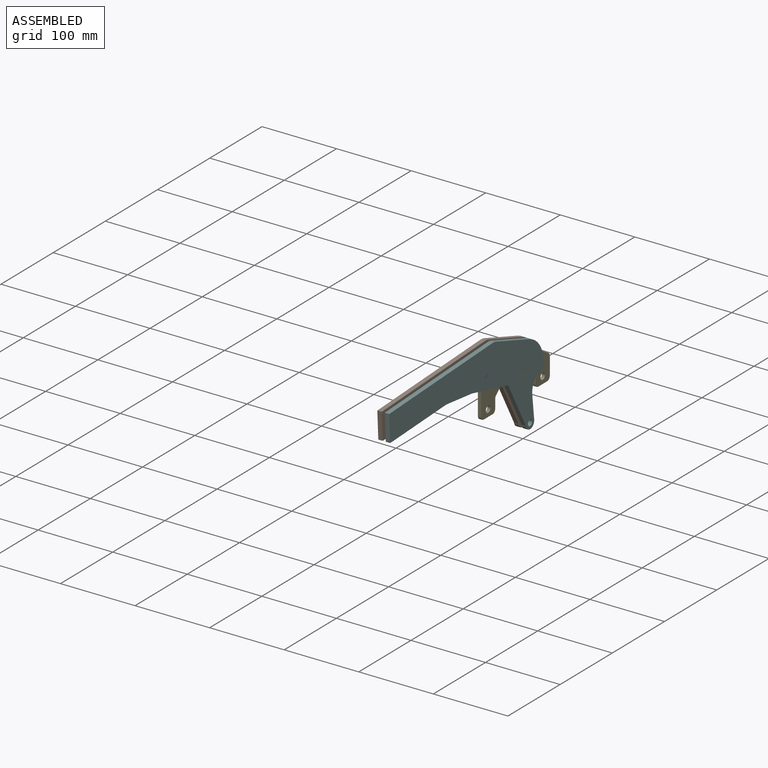
[diagram: assembled view]
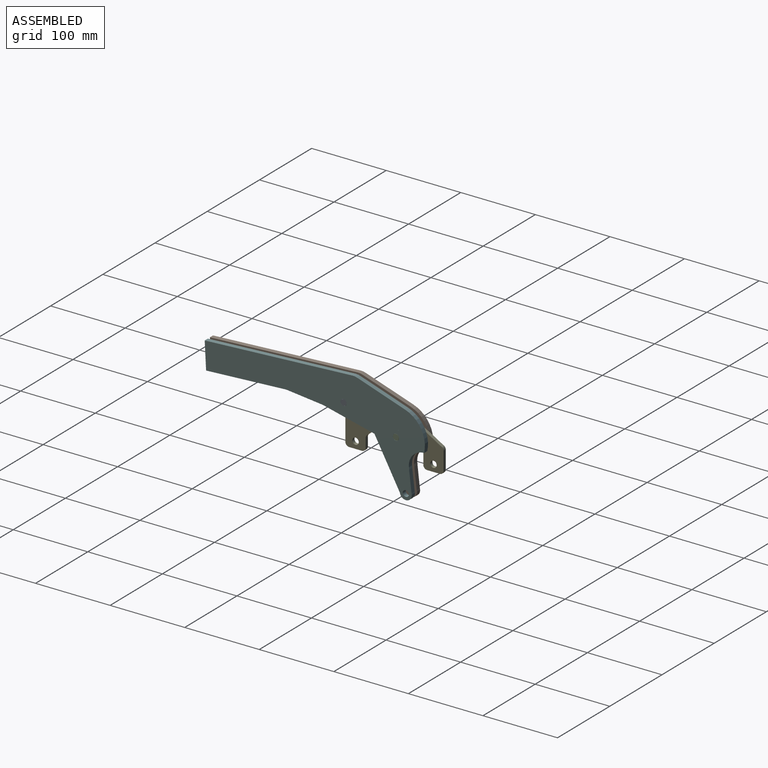
[diagram: assembled view, second angle]
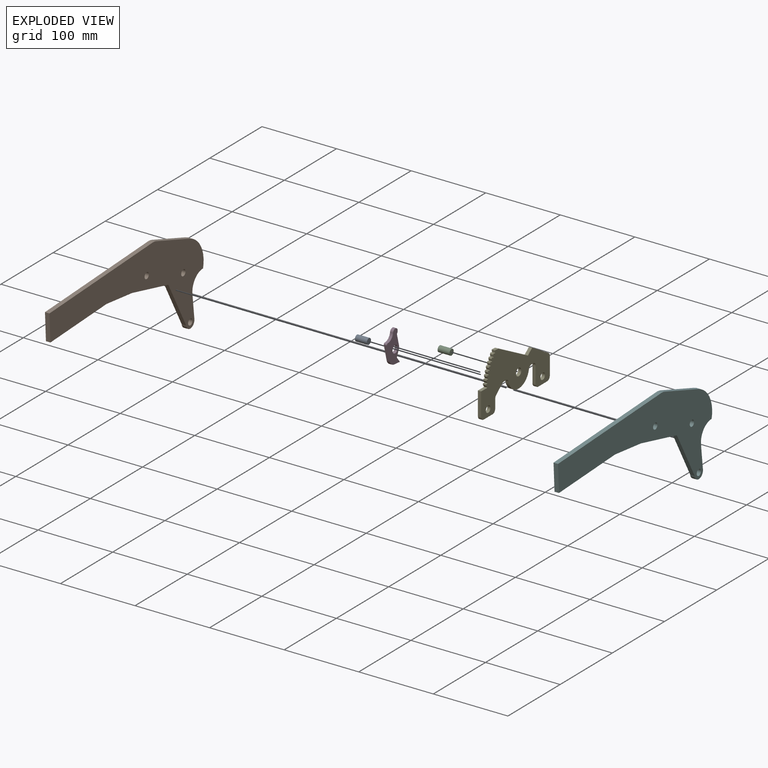
[diagram: exploded view]
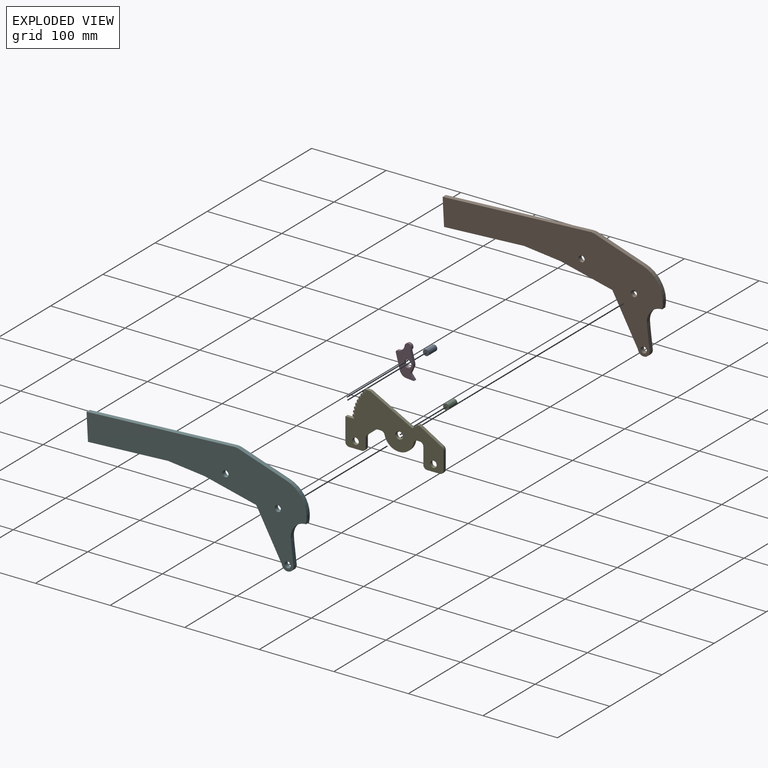
[diagram: exploded view, second angle]
ASSEMBLY  parts=6 mates=6
PART A: 3 faces, bbox 8x16x8 mm
  f0: cylinder r=4mm len=16mm, axis (0,1,0), area 402.1mm2, adj f1,f2
  f1: plane 8x8mm, normal (0,-1,0), area 50.3mm2, adj f0
  f2: plane 8x8mm, normal (0,1,0), area 50.3mm2, adj f0
PART B: 21 faces, bbox 6x299.7x107.2 mm
  f0: plane 6x0.13mm, normal (0,-1,0), area 0.8mm2, adj f1,f18,f19,f20
  f1: plane 6x0.72mm, normal (0,0,1), area 4.3mm2, adj f0,f18,f19,f20
  f2: cylinder r=8mm len=15.16mm, axis (-1,0,0), area 157.4mm2, adj f3,f17,f19,f20
  f3: plane 25.43x11.93mm, normal (0,0.91,0.42), area 168.6mm2, adj f2,f4,f19,f20
  f4: cylinder r=38.81mm len=6mm, axis (-1,0,0), area 1.8mm2, adj f3,f5,f19,f20
  f5: cylinder r=20.57mm len=30.47mm, axis (-1,0,0), area 223.1mm2, adj f4,f6,f19,f20
  f6: cylinder r=38.81mm len=38.65mm, axis (-1,0,0), area 344.9mm2, adj f5,f7,f19,f20
  f7: plane 67.64x6mm, normal (0,0,1), area 405.8mm2, adj f6,f8,f19,f20
  f8: cylinder r=20mm len=8.58mm, axis (-1,0,0), area 53.2mm2, adj f7,f9,f19,f20
  f9: plane 182.52x71.76mm, normal (0,-0.37,0.93), area 1176.7mm2, adj f8,f10,f19,f20
  f10: plane 33.5x13.17mm, normal (0,-0.93,-0.37), area 216mm2, adj f9,f11,f19,f20
  f11: plane 100.14x39.37mm, normal (0,0.37,-0.93), area 645.6mm2, adj f10,f12,f19,f20
  f12: plane 48.39x10.41mm, normal (0,0.21,-0.98), area 297mm2, adj f11,f13,f19,f20
  f13: plane 70.72x6.27mm, normal (0,0.09,-1), area 426mm2, adj f12,f17,f19,f20
  f14: cylinder r=4.1mm len=8.2mm, axis (-1,0,0), area 154.6mm2, adj f19,f20
  f15: cylinder r=4.1mm len=8.2mm, axis (-1,0,0), area 154.6mm2, adj f19,f20
  f16: cylinder r=4.1mm len=8.2mm, axis (-1,0,0), area 154.6mm2, adj f19,f20
  f17: plane 52.15x48.39mm, normal (0,-0.68,-0.73), area 426.9mm2, adj f2,f13,f19,f20
  f18: cylinder r=13.5mm len=6mm, axis (-1,0,0), area 4.4mm2, adj f0,f1,f19,f20
  f19: plane 299.74x107.2mm, normal (1,0,0), area 14235.3mm2, adj f0,f1,f2,f3,f4,f5,f6,f7
  f20: plane 299.74x107.2mm, normal (-1,0,0), area 14235.3mm2, adj f0,f1,f2,f3,f4,f5,f6,f7
PART C: same geometry as A
PART D: 14 faces, bbox 4x44.4x23 mm
  f0: plane 7.19x5.71mm, normal (0,0.62,0.78), area 36.7mm2, adj f1,f11,f12,f13
  f1: cylinder r=7.66mm len=4.76mm, axis (-1,0,0), area 20.5mm2, adj f0,f2,f12,f13
  f2: plane 15.65x4mm, normal (0,0,1), area 62.6mm2, adj f1,f3,f12,f13
  f3: cylinder r=4.5mm len=8.81mm, axis (-1,0,0), area 71.3mm2, adj f2,f4,f12,f13
  f4: cylinder r=10.13mm len=11.68mm, axis (-1,0,0), area 55.7mm2, adj f3,f5,f12,f13
  f5: cylinder r=2mm len=4mm, axis (-1,0,0), area 14.6mm2, adj f4,f6,f12,f13
  f6: plane 21.04x4mm, normal (0,0,-1), area 84.2mm2, adj f5,f7,f12,f13
  f7: cylinder r=10mm len=9.4mm, axis (-1,0,0), area 48.9mm2, adj f6,f8,f12,f13
  f8: plane 9.31x4mm, normal (0,0.94,-0.34), area 39.6mm2, adj f7,f9,f12,f13
  f9: cylinder r=0.5mm len=4mm, axis (-1,0,0), area 4.7mm2, adj f8,f11,f12,f13
  f10: cylinder r=5mm len=10mm, axis (-1,0,0), area 125.7mm2, adj f12,f13
  f11: plane 7.56x4mm, normal (0,-0.41,0.91), area 33.1mm2, adj f0,f9,f12,f13
  f12: plane 44.39x23mm, normal (1,0,0), area 594.3mm2, adj f0,f1,f2,f3,f4,f5,f6,f7
  f13: plane 44.39x23mm, normal (-1,0,0), area 594.3mm2, adj f0,f1,f2,f3,f4,f5,f6,f7
PART E: 95 faces, bbox 4.3x131.6x75.8 mm
  f0: cylinder r=0.5mm len=4.3mm, axis (-1,0,0), area 1.7mm2, adj f1,f91,f93,f94
  f1: plane 4.3x0.29mm, normal (0,-0.99,0.16), area 1.2mm2, adj f0,f2,f93,f94
  f2: cylinder r=0.5mm len=4.3mm, axis (-1,0,0), area 3.4mm2, adj f1,f3,f93,f94
  f3: plane 4.3x1.72mm, normal (0,0.14,0.99), area 7.5mm2, adj f2,f4,f93,f94
  f4: cylinder r=62.98mm len=4.3mm, axis (-1,0,0), area 7.4mm2, adj f3,f5,f93,f94
  f5: cylinder r=0.5mm len=4.3mm, axis (-1,0,0), area 1.2mm2, adj f4,f6,f93,f94
  f6: plane 4.3x2.14mm, normal (0,-0.77,-0.64), area 11.9mm2, adj f5,f7,f93,f94
  f7: cylinder r=0.5mm len=4.3mm, axis (-1,0,0), area 1.6mm2, adj f6,f8,f93,f94
  f8: cylinder r=60.75mm len=4.3mm, axis (-1,0,0), area 1.3mm2, adj f7,f9,f93,f94
  f9: cylinder r=0.5mm len=4.3mm, axis (-1,0,0), area 3.4mm2, adj f8,f10,f93,f94
  f10: plane 4.3x1.75mm, normal (0,0.06,1), area 7.5mm2, adj f9,f11,f93,f94
  f11: plane 9.13x4.3mm, normal (0,0,1), area 39.2mm2, adj f10,f12,f93,f94
  f12: plane 31x4.3mm, normal (0,-1,0), area 133.3mm2, adj f11,f13,f93,f94
  f13: cylinder r=5mm len=5mm, axis (-1,0,0), area 33.8mm2, adj f12,f14,f93,f94
  f14: plane 17.1x4.3mm, normal (0,0,-1), area 73.5mm2, adj f13,f15,f93,f94
  f15: cylinder r=5mm len=5mm, axis (-1,0,0), area 33.8mm2, adj f14,f16,f93,f94
  f16: plane 11.84x4.3mm, normal (0,1,0), area 50.9mm2, adj f15,f17,f93,f94
  f17: cylinder r=5mm len=4.3mm, axis (-1,0,0), area 18.9mm2, adj f16,f18,f93,f94
  f18: plane 11.6x9.61mm, normal (0,0.64,-0.77), area 64.8mm2, adj f17,f19,f93,f94
  f19: cylinder r=5mm len=4.3mm, axis (-1,0,0), area 14.9mm2, adj f18,f20,f93,f94
  f20: plane 4.3x3.93mm, normal (0,0,-1), area 16.9mm2, adj f19,f21,f93,f94
  f21: cylinder r=5mm len=4.88mm, axis (-1,0,0), area 29mm2, adj f20,f22,f93,f94
  f22: cylinder r=20mm len=39.1mm, axis (-1,0,0), area 233.7mm2, adj f21,f23,f93,f94
  f23: cylinder r=5mm len=4.9mm, axis (-1,0,0), area 29.5mm2, adj f22,f24,f93,f94
  f24: plane 4.3x3mm, normal (0,0,-1), area 12.9mm2, adj f23,f25,f93,f94
  f25: cylinder r=5mm len=5mm, axis (-1,0,0), area 33.8mm2, adj f24,f26,f93,f94
  f26: plane 22.02x4.3mm, normal (0,-1,0), area 94.7mm2, adj f25,f27,f93,f94
  f27: cylinder r=5mm len=5mm, axis (-1,0,0), area 33.8mm2, adj f26,f28,f93,f94
  f28: plane 17.1x4.3mm, normal (0,0,-1), area 73.5mm2, adj f27,f29,f93,f94
  f29: cylinder r=5mm len=5mm, axis (-1,0,0), area 33.8mm2, adj f28,f30,f93,f94
  f30: plane 24.04x4.3mm, normal (0,1,0), area 103.4mm2, adj f29,f31,f93,f94
  f31: cylinder r=5mm len=4.32mm, axis (-1,0,0), area 22.4mm2, adj f30,f32,f93,f94
  f32: plane 30.1x17.62mm, normal (0,0.51,0.86), area 150mm2, adj f31,f33,f93,f94
  f33: cylinder r=2mm len=4.3mm, axis (-1,0,0), area 10.1mm2, adj f32,f34,f93,f94
  f34: plane 7.26x5.51mm, normal (0,-0.6,0.8), area 39.2mm2, adj f33,f35,f93,f94
  f35: plane 56.4x29.93mm, normal (0,0.47,0.88), area 274.6mm2, adj f34,f36,f93,f94
  f36: cylinder r=0.5mm len=4.3mm, axis (-1,0,0), area 0.9mm2, adj f35,f37,f93,f94
  f37: plane 6.21x4.3mm, normal (0,0.07,1), area 26.8mm2, adj f36,f38,f93,f94
  f38: cylinder r=0.05mm len=4.3mm, axis (-1,0,0), area 0.2mm2, adj f37,f39,f93,f94
  f39: cylinder r=0.5mm len=4.3mm, axis (-1,0,0), area 1.7mm2, adj f38,f40,f93,f94
  f40: plane 4.3x2.65mm, normal (0,-1,-0.06), area 11.4mm2, adj f39,f41,f93,f94
  f41: cylinder r=0.5mm len=4.3mm, axis (-1,0,0), area 1.7mm2, adj f40,f42,f93,f94
  f42: cylinder r=60.75mm len=4.3mm, axis (-1,0,0), area 1.3mm2, adj f41,f43,f93,f94
  f43: cylinder r=0.5mm len=4.3mm, axis (-1,0,0), area 3.4mm2, adj f42,f44,f93,f94
  f44: plane 4.3x1.31mm, normal (0,0.66,0.76), area 7.5mm2, adj f43,f45,f93,f94
  f45: cylinder r=62.98mm len=4.3mm, axis (-1,0,0), area 7.6mm2, adj f44,f46,f93,f94
  f46: cylinder r=0.5mm len=4.3mm, axis (-1,0,0), area 1.8mm2, adj f45,f47,f93,f94
  f47: plane 4.3x2.62mm, normal (0,-0.99,-0.15), area 11.4mm2, adj f46,f48,f93,f94
  f48: cylinder r=0.5mm len=4.3mm, axis (-1,0,0), area 1.7mm2, adj f47,f49,f93,f94
  f49: cylinder r=60.75mm len=4.3mm, axis (-1,0,0), area 1.3mm2, adj f48,f50,f93,f94
  f50: cylinder r=0.5mm len=4.3mm, axis (-1,0,0), area 3.4mm2, adj f49,f51,f93,f94
  f51: plane 4.3x1.4mm, normal (0,0.59,0.81), area 7.5mm2, adj f50,f52,f93,f94
  f52: cylinder r=62.98mm len=4.3mm, axis (-1,0,0), area 7.6mm2, adj f51,f53,f93,f94
  f53: cylinder r=0.5mm len=4.3mm, axis (-1,0,0), area 1.9mm2, adj f52,f54,f93,f94
  f54: plane 4.3x2.45mm, normal (0,-0.97,-0.26), area 10.9mm2, adj f53,f55,f93,f94
  f55: cylinder r=0.5mm len=4.3mm, axis (-1,0,0), area 1.8mm2, adj f54,f56,f93,f94
  f56: cylinder r=60.75mm len=4.3mm, axis (-1,0,0), area 1.2mm2, adj f55,f57,f93,f94
  f57: cylinder r=0.5mm len=4.3mm, axis (-1,0,0), area 3.4mm2, adj f56,f58,f93,f94
  f58: plane 4.3x1.48mm, normal (0,0.52,0.85), area 7.5mm2, adj f57,f59,f93,f94
  f59: cylinder r=62.98mm len=4.3mm, axis (-1,0,0), area 7.6mm2, adj f58,f60,f93,f94
  f60: cylinder r=0.5mm len=4.3mm, axis (-1,0,0), area 1.8mm2, adj f59,f61,f93,f94
  f61: plane 4.3x2.45mm, normal (0,-0.95,-0.32), area 11.1mm2, adj f60,f62,f93,f94
  f62: cylinder r=0.5mm len=4.3mm, axis (-1,0,0), area 1.7mm2, adj f61,f63,f93,f94
  f63: cylinder r=60.75mm len=4.3mm, axis (-1,0,0), area 1.2mm2, adj f62,f64,f93,f94
  f64: cylinder r=0.5mm len=4.3mm, axis (-1,0,0), area 3.4mm2, adj f63,f65,f93,f94
  f65: plane 4.3x1.55mm, normal (0,0.45,0.89), area 7.5mm2, adj f64,f66,f93,f94
  f66: cylinder r=62.98mm len=4.3mm, axis (-1,0,0), area 7.6mm2, adj f65,f67,f93,f94
  f67: cylinder r=0.5mm len=4.3mm, axis (-1,0,0), area 1.8mm2, adj f66,f68,f93,f94
  f68: plane 4.3x2.38mm, normal (0,-0.92,-0.4), area 11.1mm2, adj f67,f69,f93,f94
  f69: cylinder r=0.5mm len=4.3mm, axis (-1,0,0), area 1.7mm2, adj f68,f70,f93,f94
  f70: cylinder r=60.75mm len=4.3mm, axis (-1,0,0), area 1.2mm2, adj f69,f71,f93,f94
  f71: cylinder r=0.5mm len=4.3mm, axis (-1,0,0), area 3.4mm2, adj f70,f72,f93,f94
  f72: plane 4.3x1.61mm, normal (0,0.38,0.93), area 7.5mm2, adj f71,f73,f93,f94
  f73: plane 4.3x1.65mm, normal (0,-0.93,0.37), area 7.6mm2, adj f72,f74,f93,f94
  f74: cylinder r=0.5mm len=4.3mm, axis (-1,0,0), area 1.8mm2, adj f73,f75,f93,f94
  f75: plane 4.3x2.29mm, normal (0,-0.88,-0.47), area 11.1mm2, adj f74,f76,f93,f94
  f76: cylinder r=0.5mm len=4.3mm, axis (-1,0,0), area 1.7mm2, adj f75,f77,f93,f94
  f77: cylinder r=60.75mm len=4.3mm, axis (-1,0,0), area 1.2mm2, adj f76,f78,f93,f94
  f78: cylinder r=0.5mm len=4.3mm, axis (-1,0,0), area 3.4mm2, adj f77,f79,f93,f94
  f79: plane 4.3x1.65mm, normal (0,0.3,0.95), area 7.5mm2, adj f78,f80,f93,f94
  f80: cylinder r=62.98mm len=4.3mm, axis (-1,0,0), area 7.6mm2, adj f79,f81,f93,f94
  f81: cylinder r=0.5mm len=4.3mm, axis (-1,0,0), area 1.8mm2, adj f80,f82,f93,f94
  f82: plane 4.3x2.18mm, normal (0,-0.84,-0.54), area 11.1mm2, adj f81,f83,f93,f94
  f83: cylinder r=0.5mm len=4.3mm, axis (-1,0,0), area 1.7mm2, adj f82,f84,f93,f94
  f84: plane 4.3x0.28mm, normal (0,-0.97,0.23), area 1.3mm2, adj f83,f85,f93,f94
  f85: cylinder r=0.5mm len=4.3mm, axis (-1,0,0), area 3.4mm2, adj f84,f86,f93,f94
  f86: plane 4.3x1.69mm, normal (0,0.22,0.97), area 7.5mm2, adj f85,f87,f93,f94
  f87: plane 4.3x1.73mm, normal (0,-0.98,0.21), area 7.6mm2, adj f86,f88,f93,f94
  f88: cylinder r=0.5mm len=4.3mm, axis (-1,0,0), area 1.8mm2, adj f87,f91,f93,f94
  f89: cylinder r=4.35mm len=8.7mm, axis (-1,0,0), area 117.5mm2, adj f93,f94
  f90: cylinder r=5mm len=10mm, axis (-1,0,0), area 135.1mm2, adj f93,f94
  f91: plane 4.3x2.06mm, normal (0,-0.8,-0.61), area 11.1mm2, adj f0,f88,f93,f94
  f92: cylinder r=4.35mm len=8.7mm, axis (-1,0,0), area 117.5mm2, adj f93,f94
  f93: plane 131.6x75.77mm, normal (1,0,0), area 5131.2mm2, adj f0,f1,f2,f3,f4,f5,f6,f7
  f94: plane 131.6x75.77mm, normal (-1,0,0), area 5131.2mm2, adj f0,f1,f2,f3,f4,f5,f6,f7
PART F: same geometry as B
PLACE A rot(axis=(0.5,0.5,-0.7),110deg) t=(-1.27,-67.83,32.53)mm
PLACE B rot(axis=(-1,0,0),18.4deg) t=(-17.27,2.37,9.12)mm
PLACE C rot(axis=(-0.63,-0.63,-0.45),131.2deg) t=(-1.27,2.37,9.12)mm
PLACE D rot(axis=(-1,0,0),75.3deg) t=(-11.27,-75.47,11.06)mm
PLACE E t=(-11.57,61.97,-22.88)mm fixed
PLACE F rot(axis=(-1,0,0),18.4deg) t=(-7.27,2.37,9.12)mm
MATE fastened A.f0 <-> F.f15  axis (1,0,0) through (-1.27,-67.83,32.53)mm
MATE fastened C.f0 <-> B.f4  axis (-1,0,0) through (-17.27,2.37,9.12)mm
MATE fastened C.f0 <-> F.f4  axis (1,0,0) through (-1.27,2.37,9.12)mm
MATE revolute E.f4 <-> F.f4  axis (1,0,0) through (-7.27,2.37,9.12)mm
MATE revolute F.f15 <-> D.f1  axis (-1,0,0) through (-7.27,-67.83,32.53)mm
MATE fastened A.f0 <-> B.f15  axis (-1,0,0) through (-17.27,-67.83,32.53)mm
